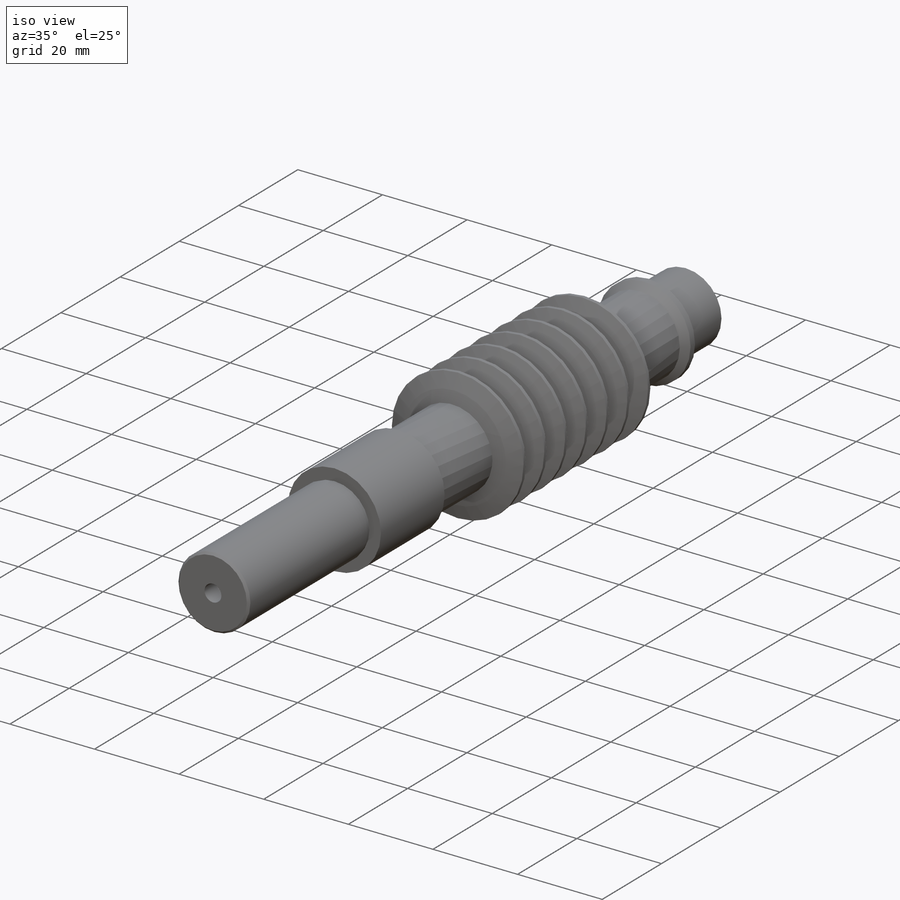
[diagram: iso view]
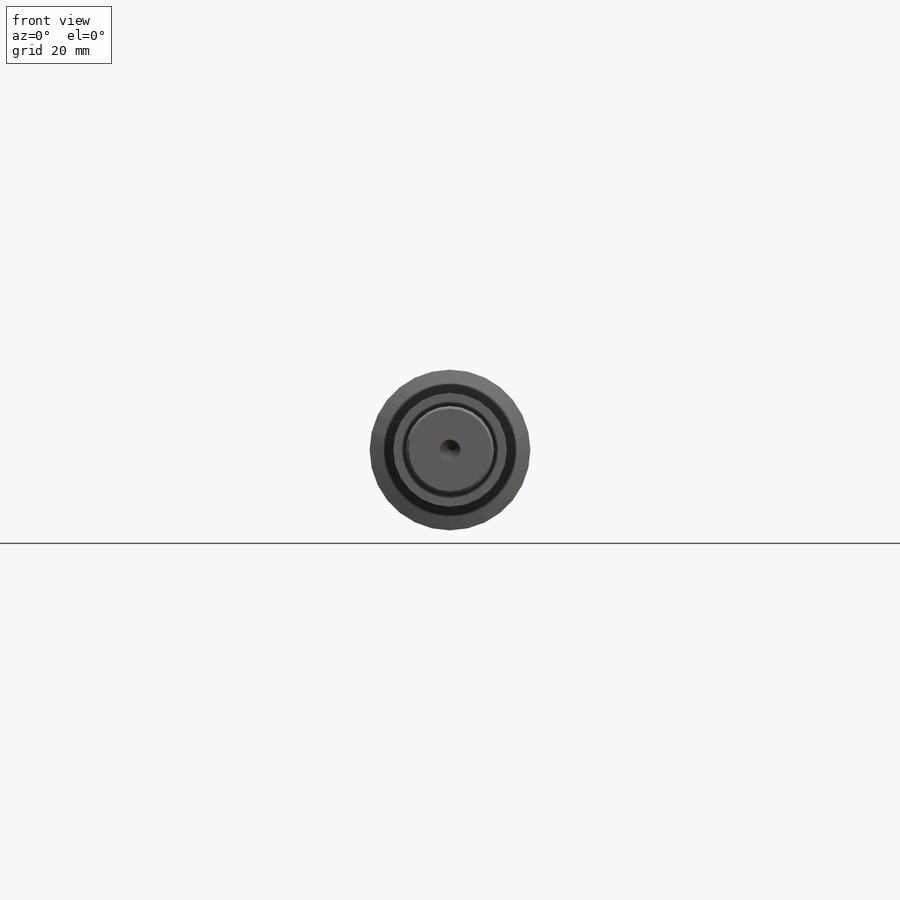
[diagram: front view]
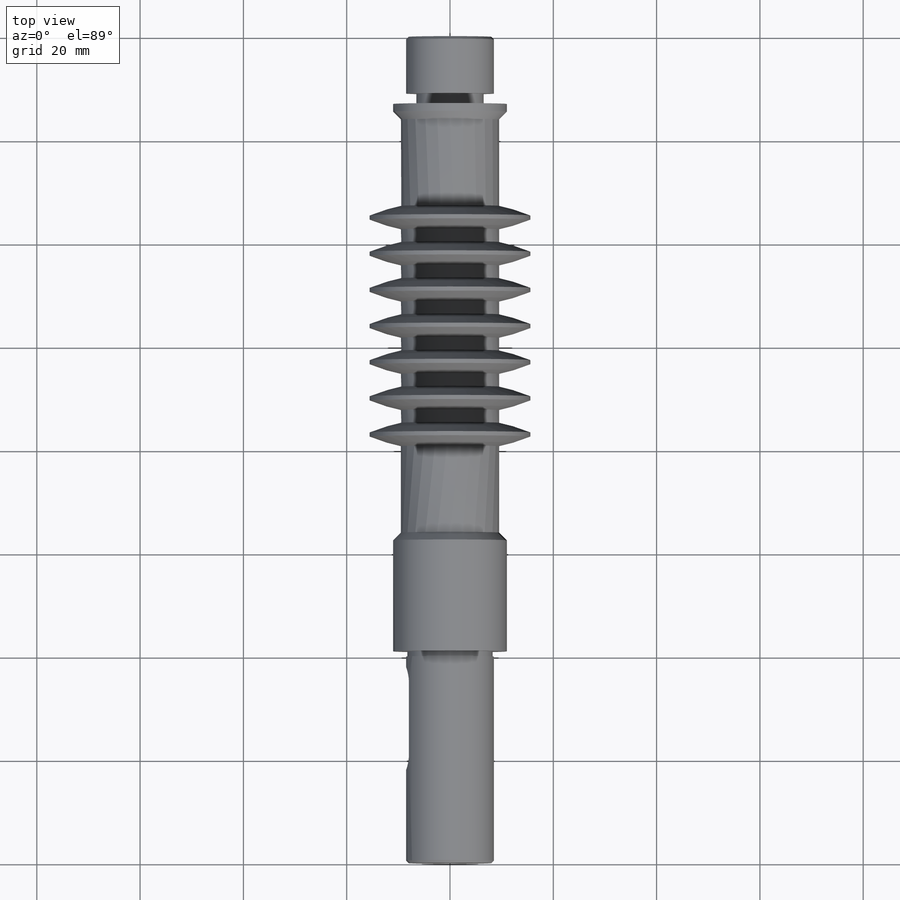
[diagram: top view]
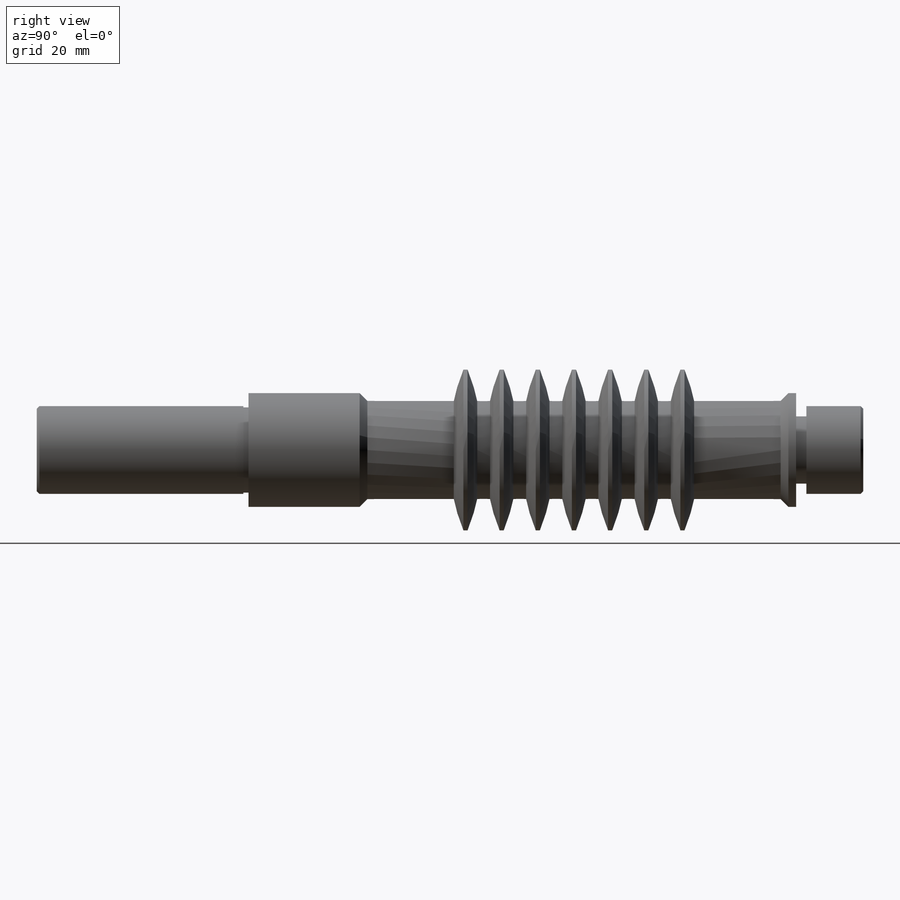
[diagram: right view]
SOLIDWORKS PART (.sldprt)
format: sldprt  version: not decoded by parser v0  size: 380,416 bytes
history: native  units: mm
features: sketch x12, extrude x7, chamfer x4, cut_extrude x3, plane x3, material x1, revolve x1, pattern_linear x1 (+16 scaffold rows collapsed)
feature tree (48):
  scaffold x16  (default folders/planes/origin — collapsed)
  material  "1023 Carbon Steel Sheet (SS)"
  sketch  "Sketch1"  dims[D1=17.0mm]
  extrude  "Extrude1"  Depth=11mm
  sketch  "Sketch2"  dims[D1=13.0mm]
  extrude  "Extrude2"  Depth=2mm
  sketch  "Sketch3"  dims[D1=22.0mm]
  extrude  "Extrude3"  Depth=3mm
  sketch  "Sketch4"  dims[D1=19.0mm]
  extrude  "Extrude4"  Depth=80mm
  sketch  "Sketch5"  dims[D1=22.0mm]
  extrude  "Extrude5"  Depth=23mm
  sketch  "Sketch6"  dims[D1=2.75mm]
  extrude  "Extrude6"  Depth=1mm
  sketch  "Sketch7"  dims[D1=17.0mm]
  extrude  "Extrude7"  Depth=40mm
  chamfer  "Chamfer1"  Distance=0.5mm Angle=45deg
  chamfer  "Chamfer2"  Distance=1.5mm Angle=45deg
  sketch  "Sketch8"  dims[D1=4.0mm]
  cut_extrude  "Extrude8"  Depth=6mm
  chamfer  "Chamfer3"  Distance=2mm Angle=45deg
  sketch  "Sketch9"
  cut_extrude  "Extrude9"  Depth=6mm
  chamfer  "Chamfer4"  Distance=2mm Angle=45deg
  plane  "Plane1"  Offset=8.5mm
  sketch  "Sketch10"  dims[c1.D2=~3.109955mm c1.D1=~3.109955mm c1.D3=1.5mm c2.D1=~9.601693mm c2.D2=20.0mm c3.D1=2.0mm c4.D1=6.0mm c4.D3=2.0mm]
  cut_extrude  "Extrude11"  Depth=2mm
  plane  "Plane2"  Offset=42mm
  plane  "Plane4"  Offset=19.94mm
  sketch  "Sketch11"  dims[c1.D1=2.0mm c1.D2=~4.886798mm c2.D2=33.0deg c2.D3=6.06mm c2.D4=~3.073494mm c3.D2=5.03mm c3.D4=~6.246505mm c3.D5=6.06mm c4.D5=~28.072487deg c4.D1=6.06mm c5.D1=~28.072487deg c5.D2=1.5mm c5.D5=~2.013792mm c6.D5=39.0deg c6.D6=0.8mm c6.D2=4.53mm]
  revolve  "Revolve1"  Angle=360deg
  sketch  "Sketch12"
  pattern_linear  "LPattern1"  Count1=7 Count2=1 Spacing1=7mm Spacing2=50mm
decode coverage: 26 of 28 modeling features carry decoded parameters
note: ~ marks probable driven/reference dimensions
note: suppression state not decoded; provenance and decode notes live in map.json
